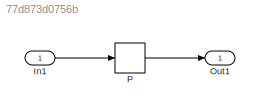
MODEL slx_77d873d0756b
KIND model
CONFIG AbsTol = auto
CONFIG EnableMultiTasking = off
CONFIG FixedStep = auto
CONFIG MaxStep = auto
CONFIG MinStep = auto
CONFIG RelTol = 1e-3
CONFIG SampleTimeConstraint = Unconstrained
CONFIG Solver = FixedStepDiscrete
CONFIG SolverName = FixedStepDiscrete
CONFIG StartTime = 0.0
CONFIG StopTime = 10.0
BLOCK [Inport] In1
  IconDisplay = Port number
  OutDataTypeStr = uint32
  PortDimensions = 7
BLOCK [Outport] Out1
  IconDisplay = Port number
BLOCK [Lookup_n-D] P
  BreakpointsForDimension1 = [43.6882525344726;61.9512041021461]
  BreakpointsForDimension1DataTypeStr = uint16
  BreakpointsForDimension2 = [31.9687121568289;33.2192437365737;58.3299929263345;72.7238575904651;76.8958064681797]
  BreakpointsForDimension2DataTypeStr = uint16
  BreakpointsForDimension3 = [7.46393171297389;89.9111072643936;92.1302966297438]
  BreakpointsForDimension3DataTypeStr = uint16
  BreakpointsForDimension4 = [7.04344412630818;64.534511058851]
  BreakpointsForDimension4DataTypeStr = uint16
  BreakpointsForDimension5 = [31.3067189706686;91.5114946814894;101.168505057814]
  BreakpointsForDimension5DataTypeStr = uint16
  BreakpointsForDimension6 = [35.8115770135274;38.5161634339057;54.3118824406366;58.3197106375591]
  BreakpointsForDimension6DataTypeStr = uint16
  BreakpointsForDimension7 = [48.6632612428452;82.1679343566363;102.053659166798]
  BreakpointsForDimension7DataTypeStr = uint16
  ExtrapMethod = Clip
  FractionDataTypeStr = single
  IntermediateResultsDataTypeStr = single
  InternalRulePriority = Speed
  NumberOfTableDimensions = 7
  OutDataTypeStr = Inherit: Inherit from 'Table data'
  Ports = [1, 1]
  RndMeth = Zero
  SaturateOnIntegerOverflow = on
  Table = reshape(repmat([4 5 6 7 8;16 19 20 21 22;10 18 23 24 25],18,8),[2,5,3,2,3,4,3])
  TableDataTypeStr = single
  UseOneInputPortForAllInputData = on
LINE In1:1 -> P:1
LINE P:1 -> Out1:1
